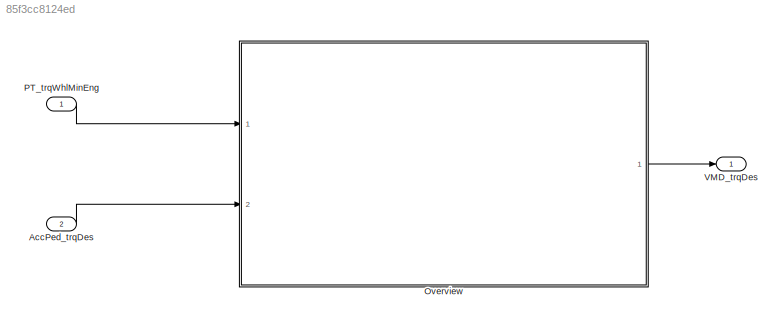
MODEL slx_85f3cc8124ed
KIND model
CONFIG AbsTol = auto
CONFIG EnableMultiTasking = off
CONFIG FixedStep = auto
CONFIG MaxStep = auto
CONFIG MinStep = auto
CONFIG RelTol = 1e-3
CONFIG SampleTimeConstraint = Unconstrained
CONFIG Solver = VariableStepAuto
CONFIG SolverName = VariableStepAuto
CONFIG StartTime = 0.0
CONFIG StopTime = 10.0
BLOCK [Inport] AccPed_trqDes
  IconDisplay = Port number
  Port = 2
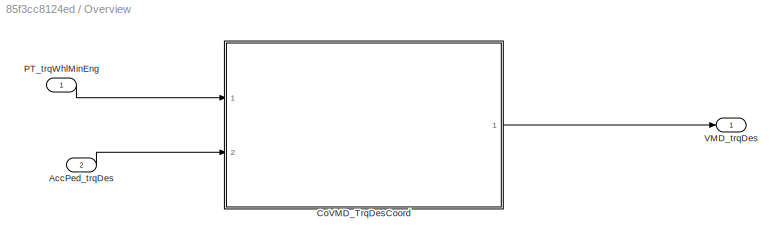
BLOCK [SubSystem] Overview
  Ports = [2, 1]
  RequestExecContextInheritance = off
BLOCK [Inport] Overview/AccPed_trqDes
  IconDisplay = Port number
  Port = 2
BLOCK [ModelReference] Overview/CoVMD_TrqDesCoord
  ModelNameDialog = CoVMD_TrqDesCoord
  ModelReferenceVersion = 1.56
  Ports = [2, 1]
BLOCK [Inport] Overview/PT_trqWhlMinEng
  IconDisplay = Port number
BLOCK [Outport] Overview/VMD_trqDes
  IconDisplay = Port number
BLOCK [Inport] PT_trqWhlMinEng
  IconDisplay = Port number
BLOCK [Outport] VMD_trqDes
  IconDisplay = Port number
LINE AccPed_trqDes:1 -> Overview:2
LINE Overview/AccPed_trqDes:1 -> Overview/CoVMD_TrqDesCoord:2
LINE Overview/CoVMD_TrqDesCoord:1 -> Overview/VMD_trqDes:1
LINE Overview/PT_trqWhlMinEng:1 -> Overview/CoVMD_TrqDesCoord:1
LINE Overview:1 -> VMD_trqDes:1
LINE PT_trqWhlMinEng:1 -> Overview:1
